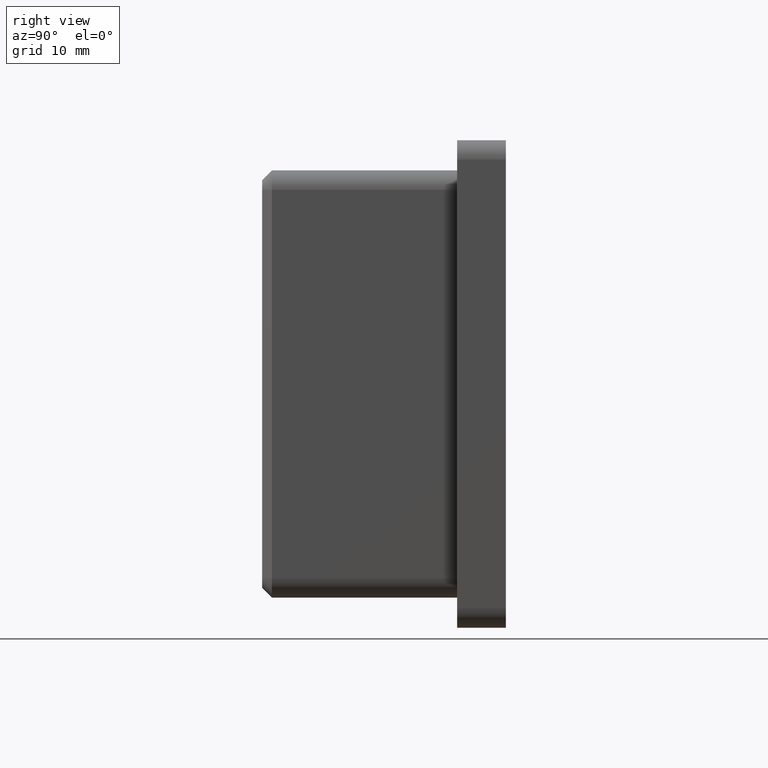
[diagram: clean part render]
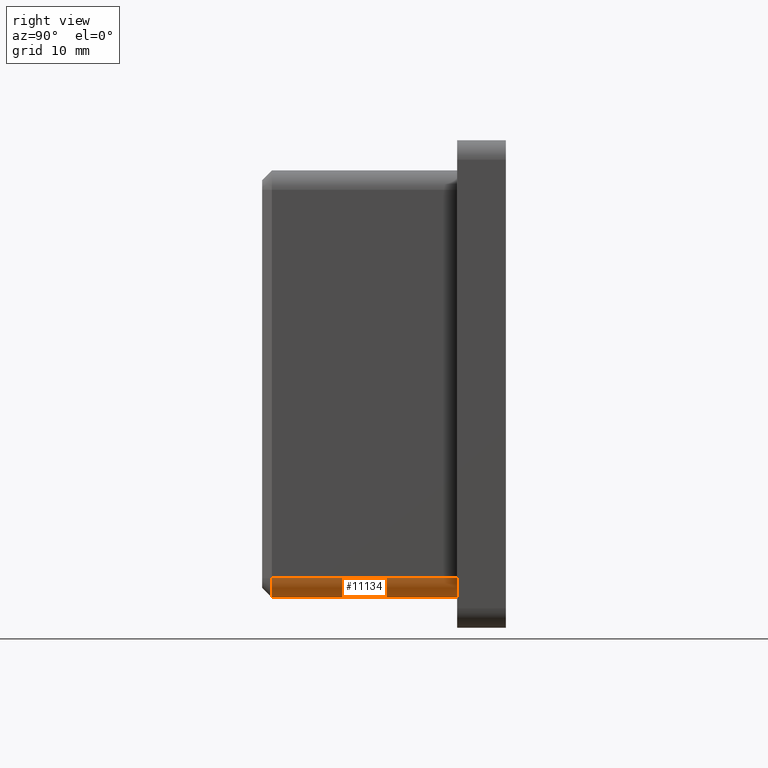
[diagram: same view with one face highlighted and labeled with its STEP entity id]
A machine part, right view. The second image highlights one B-rep face of the part: STEP entity #11134.
In plain terms, the highlighted cylindrical surface (edge-blend (fillet) strip) has radius 2 mm, axis along (0, 1, 0).
Its self-contained STEP definition (entity closure, byte-faithful):
#180 = DIRECTION ( 'NONE',  ( 0.0000000000000000000, 1.000000000000000000, 0.0000000000000000000 ) ) ;
#302 = DIRECTION ( 'NONE',  ( 0.0000000000000000000, 0.0000000000000000000, 1.000000000000000000 ) ) ;
#1931 = VERTEX_POINT ( 'NONE', #7603 ) ;
#2288 = DIRECTION ( 'NONE',  ( -0.0000000000000000000, -1.000000000000000000, -0.0000000000000000000 ) ) ;
#2378 = EDGE_CURVE ( 'NONE', #3552, #11817, #10009, .T. ) ;
#2599 = EDGE_CURVE ( 'NONE', #4902, #1931, #3082, .T. ) ;
#2709 = EDGE_CURVE ( 'NONE', #1931, #11817, #8771, .T. ) ;
#3082 = CIRCLE ( 'NONE', #7968, 1.999999999999998200 ) ;
#3174 = ORIENTED_EDGE ( 'NONE', *, *, #9426, .F. ) ;
#3351 = CARTESIAN_POINT ( 'NONE',  ( 19.90000000000000900, 0.0000000000000000000, -19.90000000000001300 ) ) ;
#3398 = DIRECTION ( 'NONE',  ( 0.0000000000000000000, 1.000000000000000000, 0.0000000000000000000 ) ) ;
#3552 = VERTEX_POINT ( 'NONE', #13396 ) ;
#3639 = DIRECTION ( 'NONE',  ( 0.0000000000000000000, 0.0000000000000000000, 1.000000000000000000 ) ) ;
#3968 = CARTESIAN_POINT ( 'NONE',  ( 21.90000000000000600, 0.0000000000000000000, -19.90000000000001300 ) ) ;
#4816 = CARTESIAN_POINT ( 'NONE',  ( 19.90000000000001300, -18.99999999999998600, -21.90000000000000600 ) ) ;
#4902 = VERTEX_POINT ( 'NONE', #3968 ) ;
#5316 = VECTOR ( 'NONE', #2288, 1000.000000000000000 ) ;
#5412 = CYLINDRICAL_SURFACE ( 'NONE', #8991, 1.999999999999998200 ) ;
#5898 = AXIS2_PLACEMENT_3D ( 'NONE', #10501, #15657, #7962 ) ;
#6858 = LINE ( 'NONE', #7375, #15371 ) ;
#7375 = CARTESIAN_POINT ( 'NONE',  ( 21.90000000000000600, -20.00000000000000000, -19.90000000000001300 ) ) ;
#7603 = CARTESIAN_POINT ( 'NONE',  ( 19.90000000000001300, 0.0000000000000000000, -21.90000000000000600 ) ) ;
#7962 = DIRECTION ( 'NONE',  ( 0.0000000000000000000, 0.0000000000000000000, -1.000000000000000000 ) ) ;
#7968 = AXIS2_PLACEMENT_3D ( 'NONE', #3351, #11339, #3639 ) ;
#8771 = LINE ( 'NONE', #10054, #5316 ) ;
#8991 = AXIS2_PLACEMENT_3D ( 'NONE', #9419, #180, #302 ) ;
#9419 = CARTESIAN_POINT ( 'NONE',  ( 19.90000000000000900, -20.00000000000000000, -19.90000000000001300 ) ) ;
#9426 = EDGE_CURVE ( 'NONE', #3552, #4902, #6858, .T. ) ;
#9442 = ORIENTED_EDGE ( 'NONE', *, *, #2599, .F. ) ;
#10009 = CIRCLE ( 'NONE', #5898, 1.999999999999998200 ) ;
#10054 = CARTESIAN_POINT ( 'NONE',  ( 19.90000000000001300, -20.00000000000000000, -21.90000000000000600 ) ) ;
#10501 = CARTESIAN_POINT ( 'NONE',  ( 19.90000000000000900, -18.99999999999998600, -19.90000000000001300 ) ) ;
#11134 = ADVANCED_FACE ( 'NONE', ( #15140 ), #5412, .T. ) ;
#11339 = DIRECTION ( 'NONE',  ( 0.0000000000000000000, 1.000000000000000000, 0.0000000000000000000 ) ) ;
#11817 = VERTEX_POINT ( 'NONE', #4816 ) ;
#12462 = ORIENTED_EDGE ( 'NONE', *, *, #2709, .F. ) ;
#13396 = CARTESIAN_POINT ( 'NONE',  ( 21.90000000000000600, -18.99999999999998600, -19.90000000000001300 ) ) ;
#14062 = EDGE_LOOP ( 'NONE', ( #3174, #15900, #12462, #9442 ) ) ;
#15140 = FACE_OUTER_BOUND ( 'NONE', #14062, .T. ) ;
#15371 = VECTOR ( 'NONE', #3398, 1000.000000000000000 ) ;
#15657 = DIRECTION ( 'NONE',  ( 0.0000000000000000000, 1.000000000000000000, 0.0000000000000000000 ) ) ;
#15900 = ORIENTED_EDGE ( 'NONE', *, *, #2378, .T. ) ;